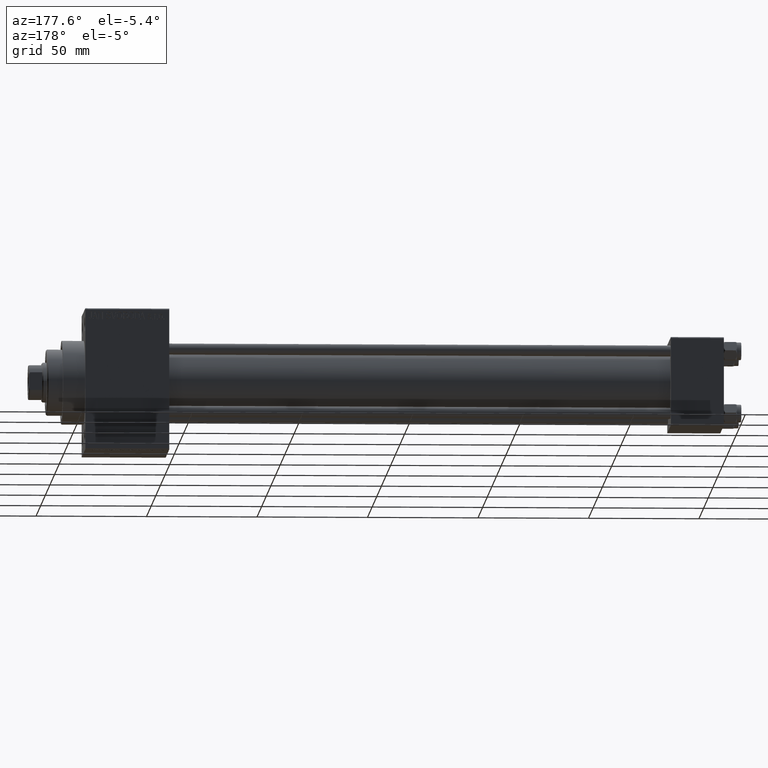
[diagram: clean part render]
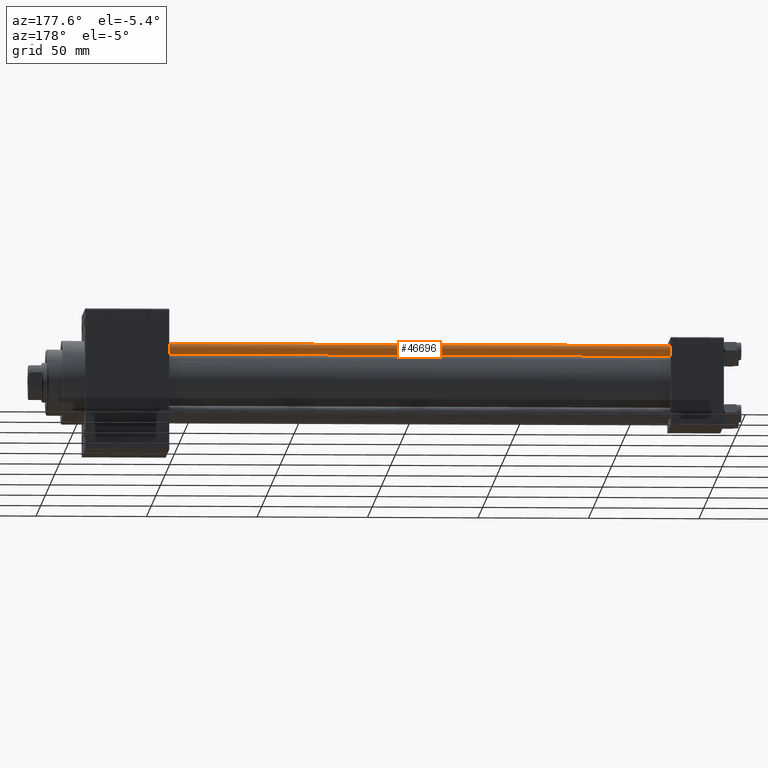
[diagram: same view with one face highlighted and labeled with its STEP entity id]
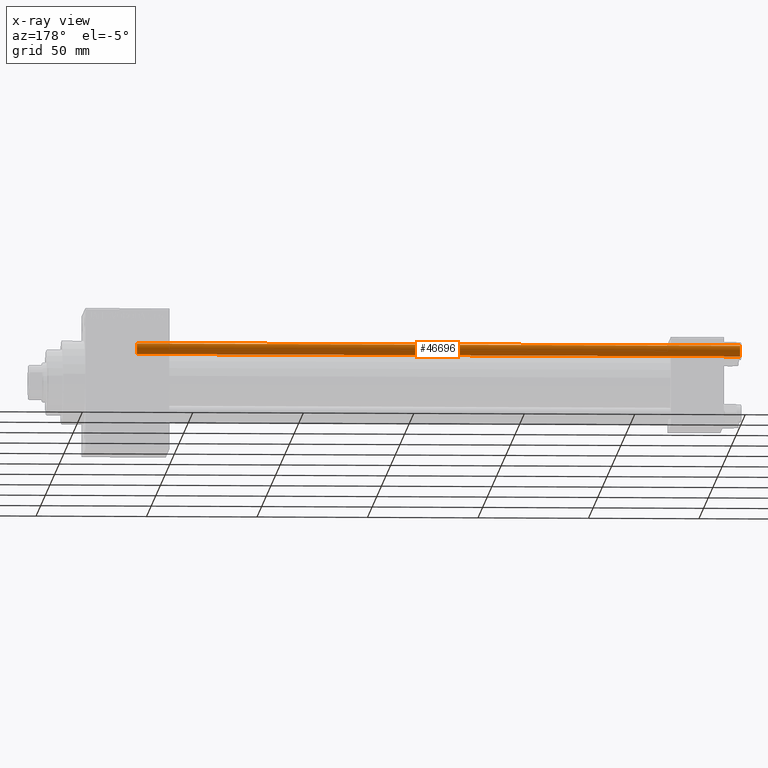
[diagram: x-ray of the same camera — body ghosted, the highlighted face saturated]
A machine part, auxiliary view. The second image highlights one B-rep face of the part: STEP entity #46696.
The next image is the same camera in x-ray: the body ghosted, the highlighted face saturated — about 0% of this face is hidden behind the body in this view.
In plain terms, the highlighted cylindrical surface (edge-blend (fillet) strip) has radius 2.5 mm, axis along (-1, -0, 0).
Its self-contained STEP definition (entity closure, byte-faithful):
#1318 = CARTESIAN_POINT ( 'NONE',  ( -2.500000000000000000, 0.000000000000000000, 274.0000000000000000 ) ) ;
#1322 = AXIS2_PLACEMENT_3D ( 'NONE', #13796, #42853, #10227 ) ;
#1800 = VERTEX_POINT ( 'NONE', #34001 ) ;
#5025 = DIRECTION ( 'NONE',  ( -0.000000000000000000, -0.000000000000000000, -1.000000000000000000 ) ) ;
#6858 = ORIENTED_EDGE ( 'NONE', *, *, #39759, .F. ) ;
#7791 = FACE_OUTER_BOUND ( 'NONE', #43875, .T. ) ;
#10227 = DIRECTION ( 'NONE',  ( 1.000000000000000000, 0.000000000000000000, 0.000000000000000000 ) ) ;
#10599 = VERTEX_POINT ( 'NONE', #42062 ) ;
#11517 = VERTEX_POINT ( 'NONE', #43475 ) ;
#13796 = CARTESIAN_POINT ( 'NONE',  ( 0.000000000000000000, 0.000000000000000000, 273.5000000000000000 ) ) ;
#14370 = VERTEX_POINT ( 'NONE', #42138 ) ;
#15682 = ORIENTED_EDGE ( 'NONE', *, *, #47021, .T. ) ;
#15766 = CIRCLE ( 'NONE', #1322, 2.500000000000000000 ) ;
#16671 = CARTESIAN_POINT ( 'NONE',  ( 2.500000000000000000, 3.061616997868383141E-16, 274.0000000000000000 ) ) ;
#18504 = CARTESIAN_POINT ( 'NONE',  ( 0.000000000000000000, 0.000000000000000000, 274.0000000000000000 ) ) ;
#23052 = DIRECTION ( 'NONE',  ( 1.000000000000000000, 0.000000000000000000, 0.000000000000000000 ) ) ;
#25929 = DIRECTION ( 'NONE',  ( -0.000000000000000000, -0.000000000000000000, 1.000000000000000000 ) ) ;
#26161 = EDGE_CURVE ( 'NONE', #14370, #11517, #15766, .T. ) ;
#26253 = EDGE_CURVE ( 'NONE', #10599, #1800, #46203, .T. ) ;
#26622 = CARTESIAN_POINT ( 'NONE',  ( 0.000000000000000000, 0.000000000000000000, 0.5000000000000004441 ) ) ;
#27725 = ORIENTED_EDGE ( 'NONE', *, *, #26253, .T. ) ;
#28738 = DIRECTION ( 'NONE',  ( -1.000000000000000000, 0.000000000000000000, 0.000000000000000000 ) ) ;
#30605 = DIRECTION ( 'NONE',  ( -0.000000000000000000, -0.000000000000000000, -1.000000000000000000 ) ) ;
#31782 = ORIENTED_EDGE ( 'NONE', *, *, #26161, .T. ) ;
#32051 = VECTOR ( 'NONE', #30605, 1000.000000000000000 ) ;
#33032 = DIRECTION ( 'NONE',  ( -0.000000000000000000, -0.000000000000000000, -1.000000000000000000 ) ) ;
#33257 = CYLINDRICAL_SURFACE ( 'NONE', #38855, 2.500000000000000000 ) ;
#34001 = CARTESIAN_POINT ( 'NONE',  ( -2.500000000000000000, 0.000000000000000000, 0.5000000000000004441 ) ) ;
#34072 = LINE ( 'NONE', #16671, #35845 ) ;
#35845 = VECTOR ( 'NONE', #5025, 1000.000000000000000 ) ;
#37513 = LINE ( 'NONE', #1318, #32051 ) ;
#38855 = AXIS2_PLACEMENT_3D ( 'NONE', #18504, #33032, #28738 ) ;
#39759 = EDGE_CURVE ( 'NONE', #14370, #1800, #37513, .T. ) ;
#42062 = CARTESIAN_POINT ( 'NONE',  ( 2.500000000000000000, 3.061616997868383141E-16, 0.5000000000000004441 ) ) ;
#42138 = CARTESIAN_POINT ( 'NONE',  ( -2.500000000000000000, 0.000000000000000000, 273.5000000000000000 ) ) ;
#42393 = AXIS2_PLACEMENT_3D ( 'NONE', #26622, #25929, #23052 ) ;
#42853 = DIRECTION ( 'NONE',  ( 0.000000000000000000, 0.000000000000000000, -1.000000000000000000 ) ) ;
#43475 = CARTESIAN_POINT ( 'NONE',  ( 2.500000000000000000, 3.061616997868383141E-16, 273.5000000000000000 ) ) ;
#43875 = EDGE_LOOP ( 'NONE', ( #31782, #15682, #27725, #6858 ) ) ;
#46203 = CIRCLE ( 'NONE', #42393, 2.500000000000000000 ) ;
#46696 = ADVANCED_FACE ( 'NONE', ( #7791 ), #33257, .T. ) ;
#47021 = EDGE_CURVE ( 'NONE', #11517, #10599, #34072, .T. ) ;